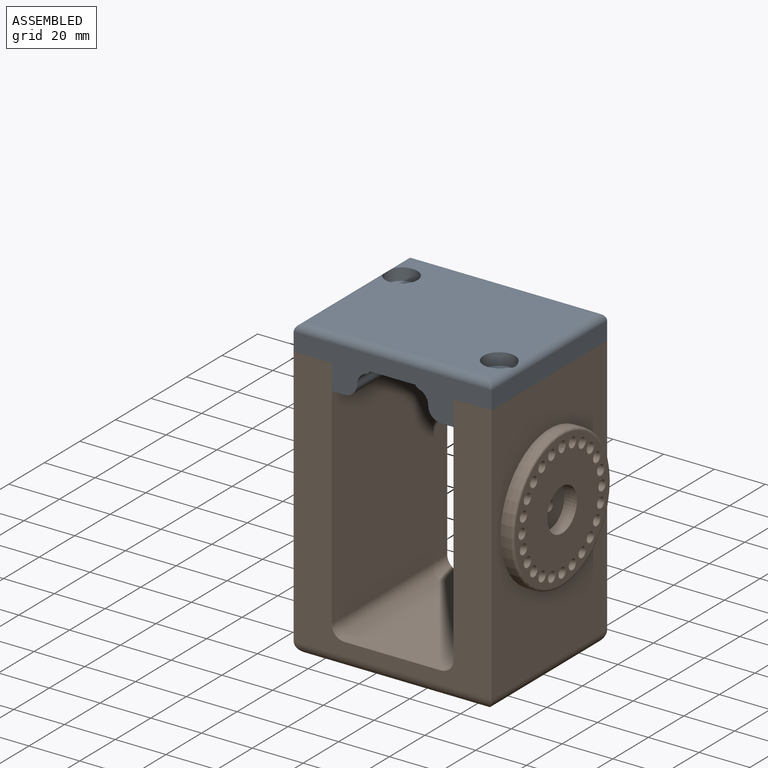
[diagram: assembled view]
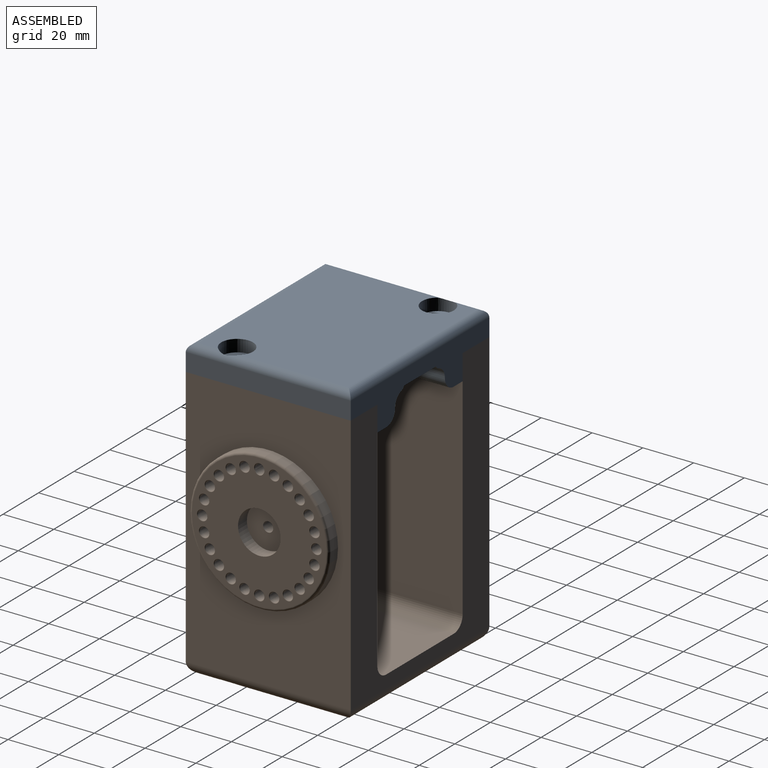
[diagram: assembled view, second angle]
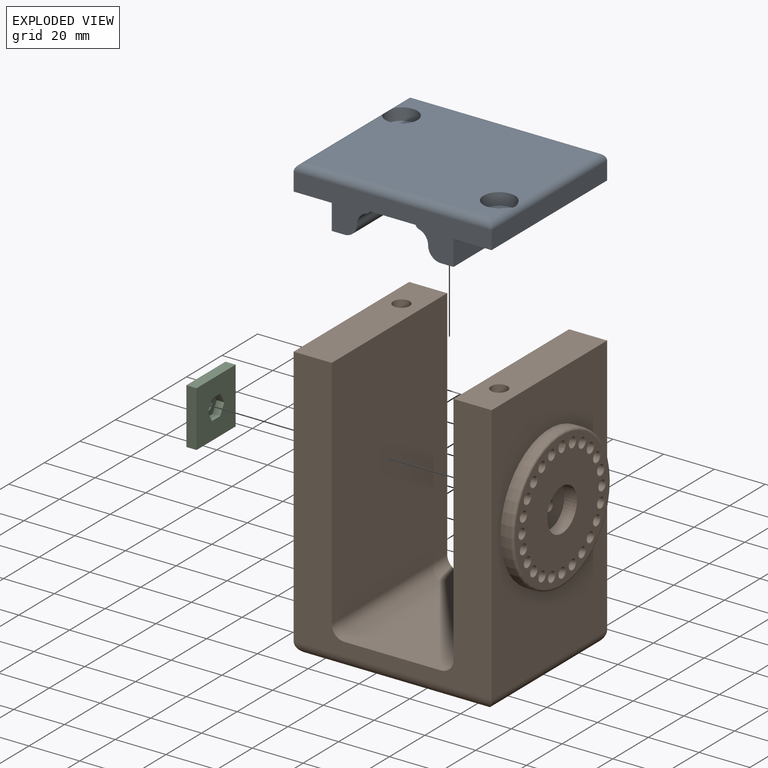
[diagram: exploded view]
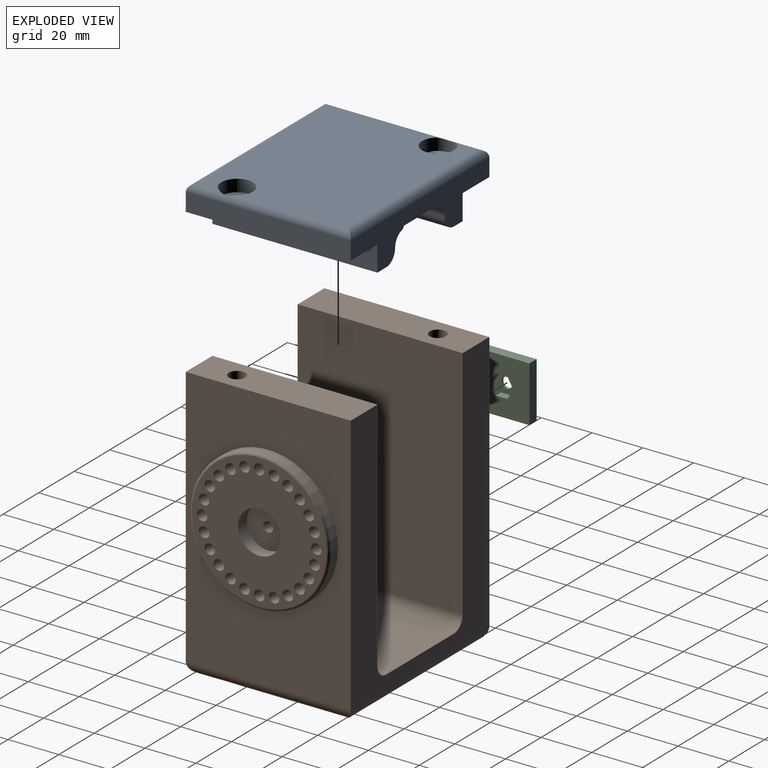
[diagram: exploded view, second angle]
ASSEMBLY  parts=3 mates=2
PART A: 28 faces, bbox 78x65x20 mm
  f0: plane 78x17mm, normal (0,-1,0), area 727.3mm2, adj f4,f5,f7,f8,f9,f10,f11,f12
  f1: plane 72x59mm, normal (0,0,-1), area 4023.4mm2, adj f17,f18,f19,f20,f21,f23
  f2: cylinder r=3.5mm len=7mm, axis (0,0,-1), area 114.4mm2, adj f8,f24
  f3: cylinder r=3.5mm len=7mm, axis (0,0,-1), area 114.4mm2, adj f4,f22
  f4: plane 65x15mm, normal (0,0,1), area 936.5mm2, adj f0,f3,f5,f6,f11
  f5: plane 65x7mm, normal (1,0,0), area 455mm2, adj f0,f4,f6,f18
  f6: plane 78x17mm, normal (0,1,0), area 727.3mm2, adj f4,f5,f7,f8,f9,f10,f11,f12
  f7: plane 65x7mm, normal (-1,0,0), area 455mm2, adj f0,f6,f8,f19
  f8: plane 65x15mm, normal (0,0,1), area 936.5mm2, adj f0,f2,f6,f7,f9
  f9: plane 65x10mm, normal (-1,0,0), area 650mm2, adj f0,f6,f8,f10
  f10: plane 65x5mm, normal (0,0,1), area 325mm2, adj f0,f6,f9,f15
  f11: plane 65x10mm, normal (1,0,0), area 650mm2, adj f0,f4,f6,f12
  f12: plane 65x5mm, normal (0,0,1), area 325mm2, adj f0,f6,f11,f13
  f13: cylinder r=5mm len=65mm, axis (0,1,0), area 510.5mm2, adj f0,f6,f12,f14
  f14: cylinder r=5mm len=65mm, axis (0,-1,0), area 423.4mm2, adj f0,f6,f13,f26
  f15: cylinder r=5mm len=65mm, axis (0,-1,0), area 510.5mm2, adj f0,f6,f10,f16
  f16: cylinder r=5mm len=65mm, axis (0,1,0), area 423.4mm2, adj f0,f6,f15,f27
  f17: cylinder r=3mm len=78mm, axis (1,0,0), area 357.3mm2, adj f0,f1,f18,f19
  f18: cylinder r=3mm len=65mm, axis (0,1,0), area 285.1mm2, adj f1,f5,f17,f20,f21
  f19: cylinder r=3mm len=65mm, axis (0,-1,0), area 285.1mm2, adj f1,f7,f17,f20,f23
  f20: cylinder r=3mm len=78mm, axis (-1,0,0), area 357.3mm2, adj f1,f6,f18,f19
  f21: cylinder r=6.25mm len=12.5mm, axis (0,0,-1), area 185.7mm2, adj f1,f18,f22
  f22: plane 12.5x12.5mm, normal (0,0,-1), area 84.2mm2, adj f3,f21
  f23: cylinder r=6.25mm len=12.5mm, axis (0,0,-1), area 185.8mm2, adj f1,f19,f24
  f24: plane 12.5x12.5mm, normal (0,0,-1), area 84.2mm2, adj f2,f23
  f25: plane 65x18mm, normal (0,0,1), area 1170mm2, adj f0,f6,f26,f27
  f26: cylinder r=2mm len=65mm, axis (0,1,0), area 119.4mm2, adj f0,f6,f14,f25
  f27: cylinder r=2mm len=65mm, axis (0,-1,0), area 119.4mm2, adj f0,f6,f16,f25
PART B: 118 faces, bbox 83.1x65.1x108.1 mm
  f0: plane 68x55mm, normal (0,0,-1), area 3578.9mm2, adj f13,f14,f15,f16,f105,f106,f107,f108
  f1: cylinder r=3.25mm len=57.5mm, axis (0,0,-1), area 1174.2mm2, adj f10,f111
  f2: cylinder r=3.25mm len=57.5mm, axis (0,0,-1), area 1174.2mm2, adj f12,f104
  f3: plane 16.8x16.8mm, normal (1,0,0), area 209.1mm2, adj f24,f53
  f4: plane 93x65mm, normal (-1,0,0), area 5420mm2, adj f5,f6,f12,f18,f19,f20,f21,f22
  f5: plane 103x78mm, normal (0,1,0), area 3340.7mm2, adj f4,f7,f8,f9,f10,f11,f12,f14
  f6: plane 103x78mm, normal (0,-1,0), area 3340.7mm2, adj f4,f7,f8,f9,f10,f11,f12,f15
  f7: plane 65x38mm, normal (0,0,1), area 2470mm2, adj f5,f6,f17,f18
  f8: plane 93x65mm, normal (1,0,0), area 6045mm2, adj f5,f6,f10,f17
  f9: plane 103x65mm, normal (-1,0,0), area 6695mm2, adj f5,f6,f10,f16
  f10: plane 65x15mm, normal (0,0,1), area 941.8mm2, adj f1,f5,f6,f8,f9
  f11: plane 103x65mm, normal (1,0,0), area 4319.2mm2, adj f5,f6,f12,f13,f28
  f12: plane 65x15mm, normal (0,0,1), area 941.8mm2, adj f2,f4,f5,f6,f11
  f13: cylinder r=5mm len=65mm, axis (0,1,0), area 456mm2, adj f0,f11,f14,f15,f105,f109,f110
  f14: cylinder r=5mm len=78mm, axis (-1,0,0), area 584.1mm2, adj f0,f5,f13,f16
  f15: cylinder r=5mm len=78mm, axis (1,0,0), area 584.1mm2, adj f0,f6,f13,f16
  f16: cylinder r=5mm len=65mm, axis (0,-1,0), area 456mm2, adj f0,f9,f14,f15,f113,f114,f115
  f17: cylinder r=5mm len=65mm, axis (0,1,0), area 510.5mm2, adj f5,f6,f7,f8
  f18: cylinder r=5mm len=65mm, axis (0,-1,0), area 510.5mm2, adj f4,f5,f6,f7
  f19: plane 25x4mm, normal (0,1,0), area 100mm2, adj f4,f20,f22,f23
  f20: plane 25x4mm, normal (0,0,-1), area 100mm2, adj f4,f19,f21,f23
  f21: plane 25x4mm, normal (0,-1,0), area 100mm2, adj f4,f20,f22,f23
  f22: plane 25x4mm, normal (0,0,1), area 100mm2, adj f4,f19,f21,f23
  f23: plane 25x25mm, normal (-1,0,0), area 370.5mm2, adj f19,f20,f21,f22,f26
  f24: cylinder r=2mm len=10mm, axis (-1,0,0), area 125.7mm2, adj f3,f25
  f25: plane 18x18mm, normal (-1,0,0), area 241.9mm2, adj f24,f26
  f26: cylinder r=9mm len=18mm, axis (-1,0,0), area 56.5mm2, adj f23,f25
  f27: cylinder r=1.75mm len=5mm, axis (-1,0,0), area 24.3mm2, adj f29,f54,f78,f103
  f28: cylinder r=27.5mm len=55mm, axis (-1,0,0), area 691.2mm2, adj f11,f79
  f29: cylinder r=1.9mm len=4.8mm, axis (-1,0,0), area 36.6mm2, adj f27,f78,f103
  f30: cylinder r=1.9mm len=4.8mm, axis (-1,0,0), area 57.3mm2, adj f77,f102
  f31: cylinder r=1.9mm len=4.8mm, axis (-1,0,0), area 57.3mm2, adj f76,f101
  f32: cylinder r=1.9mm len=4.8mm, axis (-1,0,0), area 57.3mm2, adj f75,f100
  f33: cylinder r=1.9mm len=4.8mm, axis (-1,0,0), area 57.3mm2, adj f74,f99
  f34: cylinder r=1.9mm len=4.8mm, axis (-1,0,0), area 57.3mm2, adj f73,f98
  f35: cylinder r=1.9mm len=4.8mm, axis (-1,0,0), area 57.3mm2, adj f72,f97
  f36: cylinder r=1.9mm len=4.8mm, axis (-1,0,0), area 57.3mm2, adj f71,f96
  f37: cylinder r=1.9mm len=4.8mm, axis (-1,0,0), area 57.3mm2, adj f70,f95
  f38: cylinder r=1.9mm len=4.8mm, axis (-1,0,0), area 57.3mm2, adj f69,f94
  f39: cylinder r=1.9mm len=4.8mm, axis (-1,0,0), area 57.3mm2, adj f68,f93
  f40: cylinder r=1.9mm len=4.8mm, axis (-1,0,0), area 57.3mm2, adj f67,f92
  f41: cylinder r=1.9mm len=4.8mm, axis (-1,0,0), area 57.3mm2, adj f66,f91
  f42: cylinder r=1.9mm len=4.8mm, axis (-1,0,0), area 57.3mm2, adj f65,f90
  f43: cylinder r=1.9mm len=4.8mm, axis (-1,0,0), area 57.3mm2, adj f64,f89
  f44: cylinder r=1.9mm len=4.8mm, axis (-1,0,0), area 57.3mm2, adj f63,f88
  f45: cylinder r=1.9mm len=4.8mm, axis (-1,0,0), area 57.3mm2, adj f62,f87
  f46: cylinder r=1.9mm len=4.8mm, axis (-1,0,0), area 57.3mm2, adj f61,f86
  f47: cylinder r=1.9mm len=4.8mm, axis (-1,0,0), area 57.3mm2, adj f60,f85
  f48: cylinder r=1.9mm len=4.8mm, axis (-1,0,0), area 57.3mm2, adj f59,f84
  f49: cylinder r=1.9mm len=4.8mm, axis (-1,0,0), area 57.3mm2, adj f58,f83
  f50: cylinder r=1.9mm len=4.8mm, axis (-1,0,0), area 57.3mm2, adj f57,f82
  f51: cylinder r=1.9mm len=4.8mm, axis (-1,0,0), area 57.3mm2, adj f56,f81
  f52: cylinder r=1.9mm len=4.8mm, axis (-1,0,0), area 57.3mm2, adj f55,f80
  f53: cylinder r=8.4mm len=16.8mm, axis (-1,0,0), area 263.9mm2, adj f3,f54
  f54: plane 53x53mm, normal (1,0,0), area 1651.7mm2, adj f27,f53,f79,f80,f81,f82,f83,f84
  f55: plane 3.8x3.8mm, normal (1,0,0), area 11.3mm2, adj f52
  f56: plane 3.8x3.8mm, normal (1,0,0), area 11.3mm2, adj f51
  f57: plane 3.8x3.8mm, normal (1,0,0), area 11.3mm2, adj f50
  f58: plane 3.8x3.8mm, normal (1,0,0), area 11.3mm2, adj f49
  f59: plane 3.8x3.8mm, normal (1,0,0), area 11.3mm2, adj f48
  f60: plane 3.8x3.8mm, normal (1,0,0), area 11.3mm2, adj f47
  f61: plane 3.8x3.8mm, normal (1,0,0), area 11.3mm2, adj f46
  f62: plane 3.8x3.8mm, normal (1,0,0), area 11.3mm2, adj f45
  f63: plane 3.8x3.8mm, normal (1,0,0), area 11.3mm2, adj f44
  f64: plane 3.8x3.8mm, normal (1,0,0), area 11.3mm2, adj f43
  f65: plane 3.8x3.8mm, normal (1,0,0), area 11.3mm2, adj f42
  f66: plane 3.8x3.8mm, normal (1,0,0), area 11.3mm2, adj f41
  f67: plane 3.8x3.8mm, normal (1,0,0), area 11.3mm2, adj f40
  f68: plane 3.8x3.8mm, normal (1,0,0), area 11.3mm2, adj f39
  f69: plane 3.8x3.8mm, normal (1,0,0), area 11.3mm2, adj f38
  f70: plane 3.8x3.8mm, normal (1,0,0), area 11.3mm2, adj f37
  f71: plane 3.8x3.8mm, normal (1,0,0), area 11.3mm2, adj f36
  f72: plane 3.8x3.8mm, normal (1,0,0), area 11.3mm2, adj f35
  f73: plane 3.8x3.8mm, normal (1,0,0), area 11.3mm2, adj f34
  f74: plane 3.8x3.8mm, normal (1,0,0), area 11.3mm2, adj f33
  f75: plane 3.8x3.8mm, normal (1,0,0), area 11.3mm2, adj f32
  f76: plane 3.8x3.8mm, normal (1,0,0), area 11.3mm2, adj f31
  f77: plane 3.8x3.8mm, normal (1,0,0), area 11.3mm2, adj f30
  f78: plane 4.15x3.8mm, normal (1,0,0), area 12.4mm2, adj f27,f29
  f79: torus R=26.5mm, axis (1,0,0), area 267.8mm2, adj f28,f54
  f80: torus R=2.1mm, axis (1,0,0), area 3.9mm2, adj f52,f54
  f81: torus R=2.1mm, axis (1,0,0), area 3.9mm2, adj f51,f54
  f82: torus R=2.1mm, axis (1,0,0), area 3.9mm2, adj f50,f54
  f83: torus R=2.1mm, axis (1,0,0), area 3.9mm2, adj f49,f54
  f84: torus R=2.1mm, axis (1,0,0), area 3.9mm2, adj f48,f54
  f85: torus R=2.1mm, axis (1,0,0), area 3.9mm2, adj f47,f54
  f86: torus R=2.1mm, axis (1,0,0), area 3.9mm2, adj f46,f54
  f87: torus R=2.1mm, axis (1,0,0), area 3.9mm2, adj f45,f54
  f88: torus R=2.1mm, axis (1,0,0), area 3.9mm2, adj f44,f54
  f89: torus R=2.1mm, axis (1,0,0), area 3.9mm2, adj f43,f54
  f90: torus R=2.1mm, axis (1,0,0), area 3.9mm2, adj f42,f54
  f91: torus R=2.1mm, axis (1,0,0), area 3.9mm2, adj f41,f54
  f92: torus R=2.1mm, axis (1,0,0), area 3.9mm2, adj f40,f54
  f93: torus R=2.1mm, axis (1,0,0), area 3.9mm2, adj f39,f54
  f94: torus R=2.1mm, axis (1,0,0), area 3.9mm2, adj f38,f54
  f95: torus R=2.1mm, axis (1,0,0), area 3.9mm2, adj f37,f54
  f96: torus R=2.1mm, axis (1,0,0), area 3.9mm2, adj f36,f54
  f97: torus R=2.1mm, axis (1,0,0), area 3.9mm2, adj f35,f54
  f98: torus R=2.1mm, axis (1,0,0), area 3.9mm2, adj f34,f54
  f99: torus R=2.1mm, axis (1,0,0), area 3.9mm2, adj f33,f54
  f100: torus R=2.1mm, axis (1,0,0), area 3.9mm2, adj f32,f54
  f101: torus R=2.1mm, axis (1,0,0), area 3.9mm2, adj f31,f54
  f102: torus R=2.1mm, axis (1,0,0), area 3.9mm2, adj f30,f54
  f103: torus R=2.1mm, axis (1,0,0), area 2.8mm2, adj f27,f29,f54
  f104: plane 12.7x11mm, normal (0,0,-1), area 71.6mm2, adj f2,f105,f106,f107,f108,f109,f110
  f105: plane 50.6x5.6mm, normal (-0.5,0.87,0), area 319.6mm2, adj f0,f13,f104,f106,f110
  f106: plane 50.5x5.5mm, normal (0.5,0.87,0), area 320.7mm2, adj f0,f104,f105,f107
  f107: plane 50.5x6.35mm, normal (1,0,0), area 320.7mm2, adj f0,f104,f106,f108
  f108: plane 50.5x5.5mm, normal (0.5,-0.87,0), area 320.7mm2, adj f0,f104,f107,f109
  f109: plane 50.6x5.6mm, normal (-0.5,-0.87,0), area 319.6mm2, adj f0,f13,f104,f108,f110
  f110: plane 49.5x6.35mm, normal (-1,0,0), area 314.4mm2, adj f13,f104,f105,f109
  f111: plane 12.7x11mm, normal (0,0,-1), area 71.6mm2, adj f1,f112,f113,f114,f115,f116,f117
  f112: plane 50.5x5.5mm, normal (-0.5,0.87,0), area 320.7mm2, adj f0,f111,f113,f117
  f113: plane 50.6x5.6mm, normal (0.5,0.87,0), area 319.6mm2, adj f0,f16,f111,f112,f114
  f114: plane 49.5x6.35mm, normal (1,0,0), area 314.4mm2, adj f16,f111,f113,f115
  f115: plane 50.6x5.6mm, normal (0.5,-0.87,0), area 319.6mm2, adj f0,f16,f111,f114,f116
  f116: plane 50.5x5.5mm, normal (-0.5,-0.87,0), area 320.7mm2, adj f0,f111,f115,f117
  f117: plane 50.5x6.35mm, normal (-1,0,0), area 320.7mm2, adj f0,f111,f112,f116
PART C: 14 faces, bbox 22x22x4 mm
  f0: plane 4x3mm, normal (-0.87,0.5,0), area 13.9mm2, adj f1,f5,f11,f12
  f1: plane 4x3mm, normal (-0.87,-0.5,0), area 13.9mm2, adj f0,f2,f11,f12
  f2: plane 4.62x3mm, normal (0,-1,0), area 13.9mm2, adj f1,f3,f11,f12
  f3: plane 4x3mm, normal (0.87,-0.5,0), area 13.9mm2, adj f2,f4,f11,f12
  f4: plane 4x3mm, normal (0.87,0.5,0), area 13.9mm2, adj f3,f5,f11,f12
  f5: plane 4.62x3mm, normal (0,1,0), area 13.9mm2, adj f0,f4,f11,f12
  f6: plane 22x4mm, normal (0,-1,0), area 88mm2, adj f7,f9,f10,f11
  f7: plane 22x4mm, normal (1,0,0), area 88mm2, adj f6,f8,f10,f11
  f8: plane 22x4mm, normal (0,1,0), area 88mm2, adj f7,f9,f10,f11
  f9: plane 22x4mm, normal (-1,0,0), area 88mm2, adj f6,f8,f10,f11
  f10: plane 22x22mm, normal (0,0,1), area 470.1mm2, adj f6,f7,f8,f9,f13
  f11: plane 22x22mm, normal (0,0,-1), area 428.6mm2, adj f0,f1,f2,f3,f4,f5,f6,f7
  f12: plane 9.24x8mm, normal (0,0,-1), area 41.6mm2, adj f0,f1,f2,f3,f4,f5,f13
  f13: cylinder r=2.1mm len=4.2mm, axis (0,0,1), area 13.2mm2, adj f10,f12
PLACE A rot(axis=(0,1,0),180deg) t=(-27.95,-5.76,123.48)mm
PLACE B t=(-27.95,-5.76,5.48)mm
PLACE C rot(axis=(-0.58,-0.58,0.58),120deg) t=(0.05,-5.76,66.98)mm
MATE fastened C.f13 <-> B.f53  axis (1,0,0) through (0.05,-5.76,66.98)mm
MATE revolute A.f8 <-> B.f12  axis (0,0,-1) through (11.05,-38.26,113.48)mm
